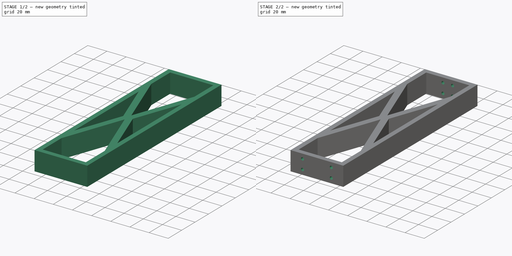
[diagram: build sequence overview — one tinted view per stage of 2, left to right]
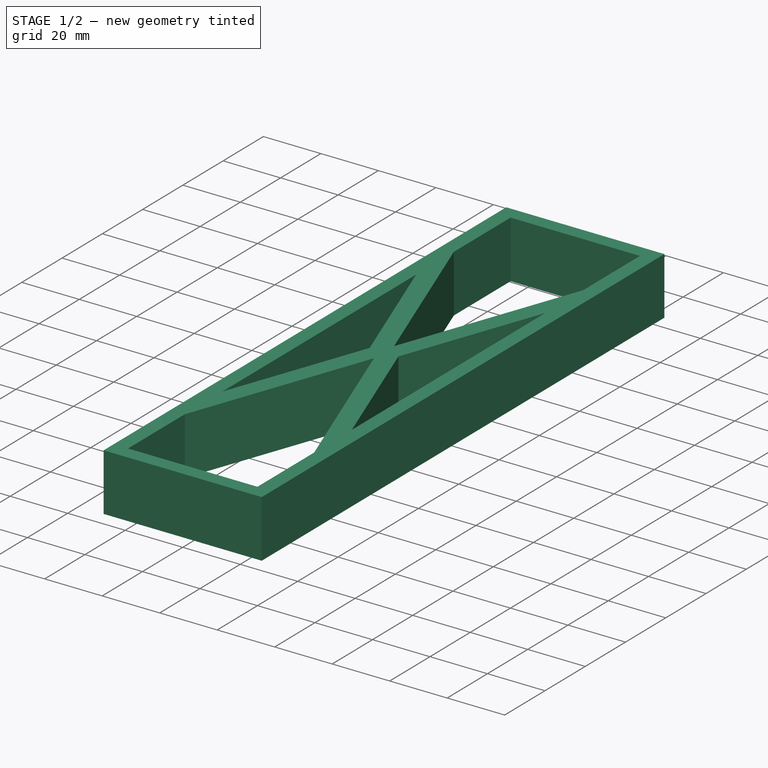
[diagram: stage 1 of 2 — iso view after this stage's code; geometry added in this stage tinted green]
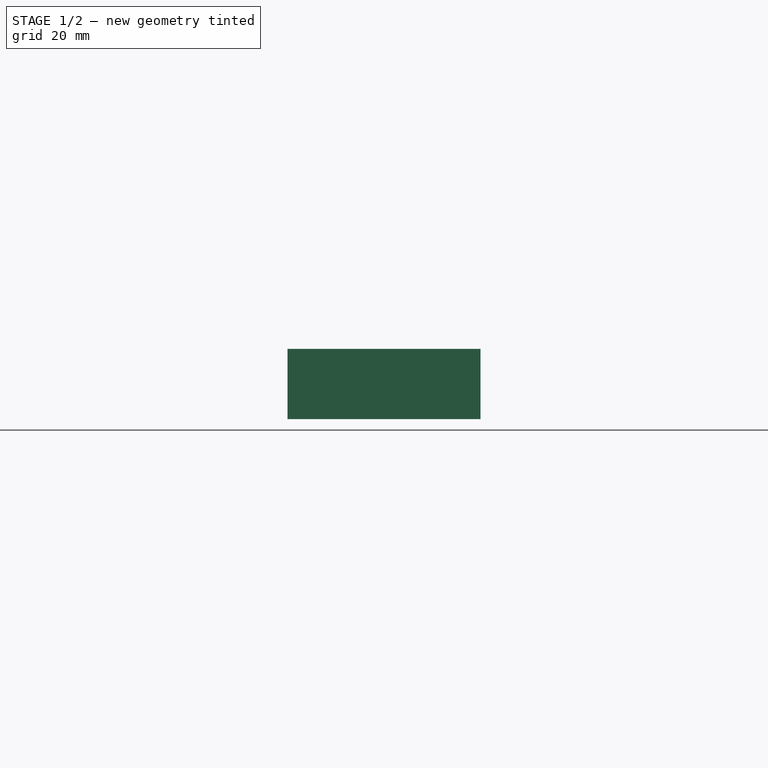
[diagram: stage 1 of 2 — front view after this stage's code; geometry added in this stage tinted green]
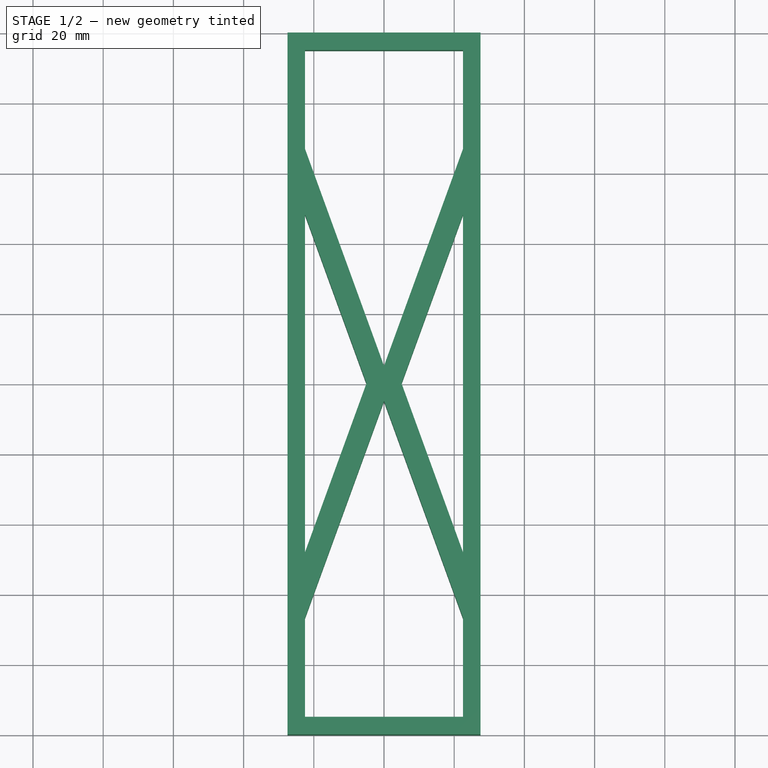
[diagram: stage 1 of 2 — top view after this stage's code; geometry added in this stage tinted green]
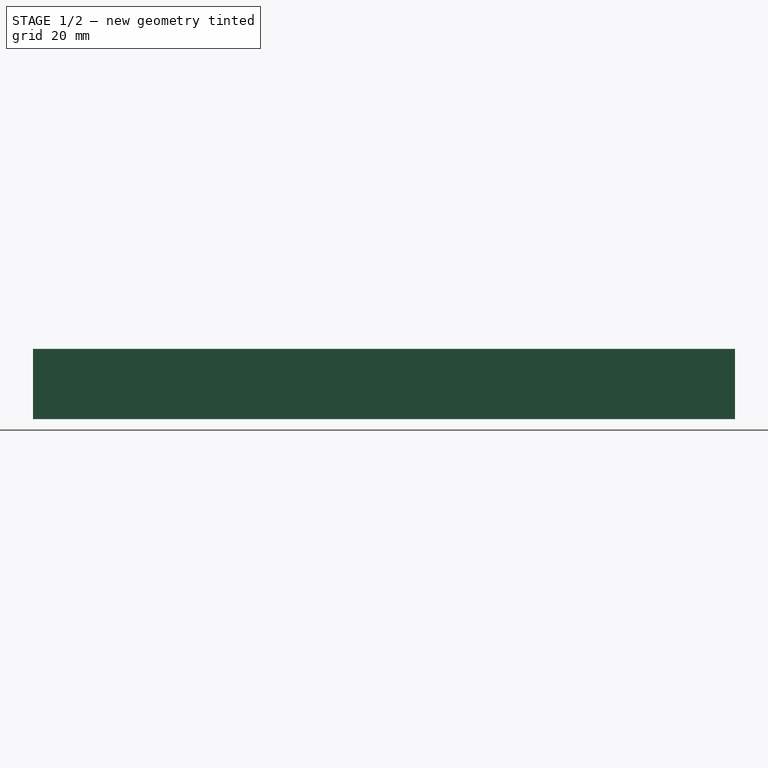
[diagram: stage 1 of 2 — right view after this stage's code; geometry added in this stage tinted green]
FCSTD DOCUMENT  (FreeCAD 0.21R33771 (Git))
Label: Arm0
License: All rights reserved
LicenseURL: https://en.wikipedia.org/wiki/All_rights_reserved
objects: Sketcher::SketchObject×4, PartDesign::Pocket×3, PartDesign::Pad×1, PartDesign::Body×1
note: 13 computed .brp shape members not serialized (recipe doc carries the construction recipe); baked Part::Feature solids carry a one-line shape summary decoded from their .brp

FEATURE [Sketcher::SketchObject] Sketch
  FullyConstrained = true
  MapMode = 5
  Support = -> [XY_Plane]
  sketch-geometry (4):
    g0: LineSegment StartX=-27.5 StartY=-100 StartZ=0 EndX=-27.5 EndY=100 EndZ=0
    g1: LineSegment StartX=-27.5 StartY=100 StartZ=0 EndX=27.5 EndY=100 EndZ=0
    g2: LineSegment StartX=27.5 StartY=100 StartZ=0 EndX=27.5 EndY=-100 EndZ=0
    g3: LineSegment StartX=27.5 StartY=-100 StartZ=0 EndX=-27.5 EndY=-100 EndZ=0
  constraints (12):
    c: Vertical(g0)
    c: Coincident(g0,g1)
    c: Horizontal(g1)
    c: Coincident(g1,g2)
    c: Vertical(g2)
    c: Coincident(g2,g3)
    c: Coincident(g3,g0)
    c: Horizontal(g3)
    c: DistanceX(g0,g1) = 55
    c: DistanceY(g0,g0) = 200
    c: DistanceY(g-1,g0) = 100
    c: DistanceX(g0,g-1) = 27.5
FEATURE [PartDesign::Pad] Pad
  Direction = (0,0,1)
  Length = 20
  Length2 = 10
  Profile = -> Sketch
  ReferenceAxis = -> Sketch [N_Axis]
  Type = 0
FEATURE [Sketcher::SketchObject] Sketch001
  ExternalGeometry = -> [Pad]
  FullyConstrained = true
  MapMode = 5
  Placement = pos=(0,0,20) rot=(0,0,1;0rad)
  Support = -> [Pad]
  sketch-geometry (16):
    g0: LineSegment StartX=-22.5 StartY=-95 StartZ=0 EndX=22.5 EndY=-95 EndZ=0
    g1: LineSegment StartX=22.5 StartY=-95 StartZ=0 EndX=22.5 EndY=-66.8182 EndZ=0
    g2: LineSegment StartX=22.5 StartY=-66.8182 StartZ=0 EndX=0 EndY=-5 EndZ=0
    g3: LineSegment StartX=0 StartY=-5 StartZ=0 EndX=-22.5 EndY=-66.8182 EndZ=0
    g4: LineSegment StartX=-22.5 StartY=-66.8182 StartZ=0 EndX=-22.5 EndY=-95 EndZ=0
    g5: LineSegment StartX=-22.5 StartY=95 StartZ=0 EndX=22.5 EndY=95 EndZ=0
    g6: LineSegment StartX=22.5 StartY=95 StartZ=0 EndX=22.5 EndY=66.8182 EndZ=0
    g7: LineSegment StartX=22.5 StartY=66.8182 StartZ=0 EndX=0 EndY=5 EndZ=0
    g8: LineSegment StartX=0 StartY=5 StartZ=0 EndX=-22.5 EndY=66.8182 EndZ=0
    g9: LineSegment StartX=-22.5 StartY=66.8182 StartZ=0 EndX=-22.5 EndY=95 EndZ=0
    g10: LineSegment StartX=-5 StartY=0 StartZ=0 EndX=-22.5 EndY=-48.0809 EndZ=0
    g11: LineSegment StartX=-22.5 StartY=-48.0809 StartZ=0 EndX=-22.5 EndY=48.0809 EndZ=0
    g12: LineSegment StartX=-22.5 StartY=48.0809 StartZ=0 EndX=-5 EndY=0 EndZ=0
    g13: LineSegment StartX=5 StartY=0 StartZ=0 EndX=22.5 EndY=48.0809 EndZ=0
    g14: LineSegment StartX=22.5 StartY=48.0809 StartZ=0 EndX=22.5 EndY=-48.0809 EndZ=0
    g15: LineSegment StartX=22.5 StartY=-48.0809 StartZ=0 EndX=5 EndY=0 EndZ=0
  constraints (48):
    c: Horizontal(g0)
    c: Coincident(g0,g1)
    c: Vertical(g1)
    c: Coincident(g1,g2)
    c: PointOnObject(g2,g-2)
    c: Coincident(g2,g3)
    c: Coincident(g3,g4)
    c: Coincident(g4,g0)
    c: Vertical(g4)
    c: Horizontal(g5)
    c: Coincident(g5,g6)
    c: Vertical(g6)
    c: Coincident(g6,g7)
    c: PointOnObject(g7,g-2)
    c: Coincident(g7,g8)
    c: Coincident(g8,g9)
    c: Coincident(g9,g5)
    c: PointOnObject(g10,g-1)
    c: Coincident(g10,g11)
    c: Vertical(g11)
    c: Coincident(g11,g12)
    c: Coincident(g12,g10)
    c: PointOnObject(g13,g-1)
    c: Coincident(g13,g14)
    c: Vertical(g14)
    c: Coincident(g14,g15)
    c: Coincident(g15,g13)
    c: DistanceY(g-6,g0) = 5
    c: DistanceY(g5,g-4) = 5
    c: DistanceX(g-5,g5) = 5
    c: DistanceX(g5,g-4) = 5
    c: Vertical(g9)
    c: Angle(g8,g9) = 2.79253
    c: Angle(g6,g7) = 2.79253
    c: Angle(g4,g3) = 2.79253
    c: Angle(g2,g1) = 2.79253
    c: Angle(g11,g12) = 0.349066
    c: Angle(g10,g11) = 0.349066
    c: Angle(g14,g15) = 0.349066
    c: Angle(g13,g14) = 0.349066
    c: DistanceY(g1,g3) = 0
    c: DistanceX(g10,g-1) = 5
    c: DistanceX(g-1,g13) = 5
    c: DistanceY(g2,g-1) = 5
    c: DistanceY(g-1,g7) = 5
    c: DistanceX(g-5,g11) = 5
    c: DistanceX(g13,g-4) = 5
    c: DistanceX(g-6,g0) = 5
FEATURE [PartDesign::Pocket] Pocket
  BaseFeature = -> Pad
  Direction = (0,0,-1)
  Length = 20
  Length2 = 5
  Profile = -> Sketch001
  ReferenceAxis = -> Sketch001 [N_Axis]
  Type = 0
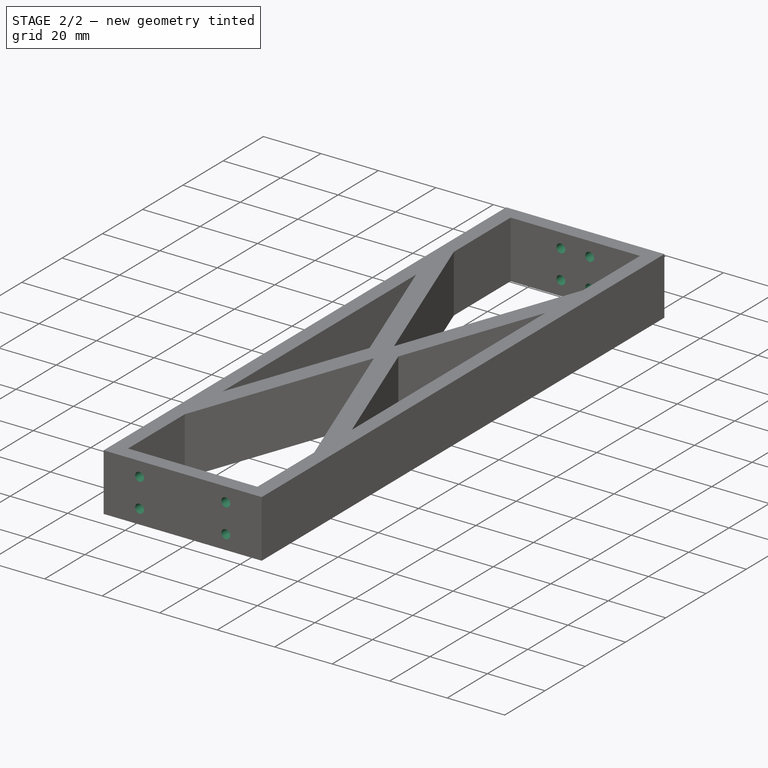
[diagram: stage 2 of 2 — iso view after this stage's code; geometry added in this stage tinted green]
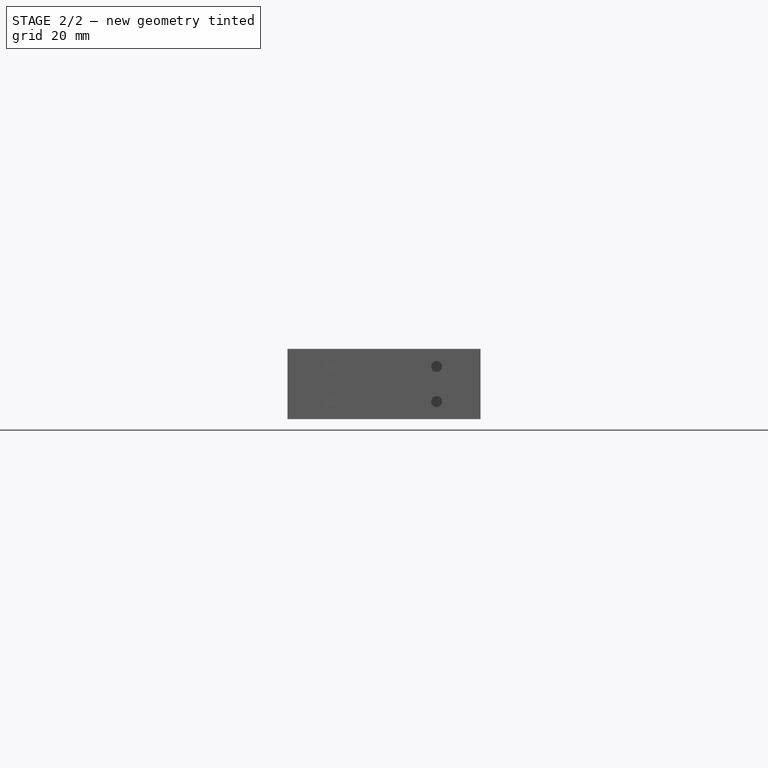
[diagram: stage 2 of 2 — front view after this stage's code; geometry added in this stage tinted green]
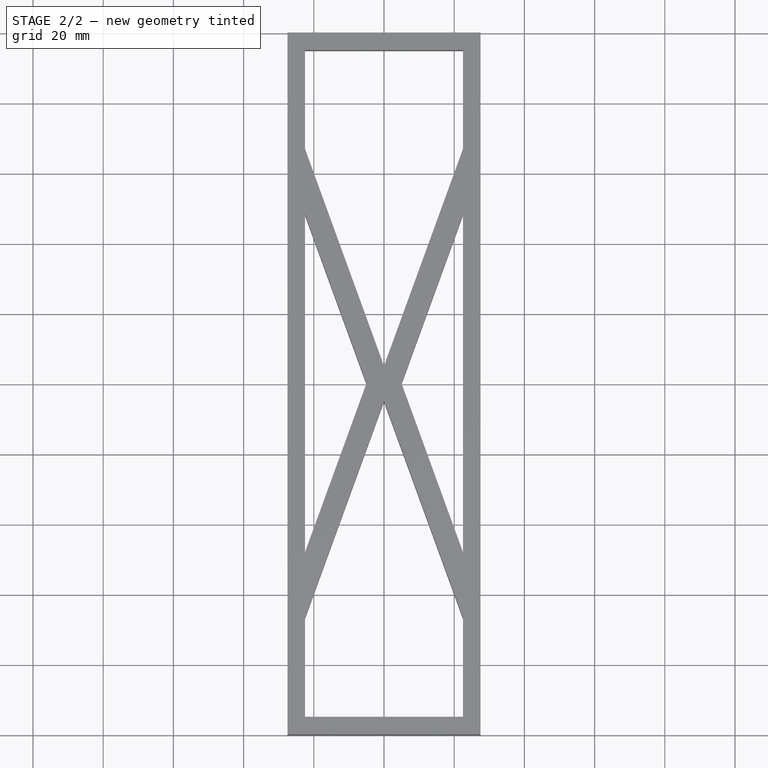
[diagram: stage 2 of 2 — top view after this stage's code; geometry added in this stage tinted green]
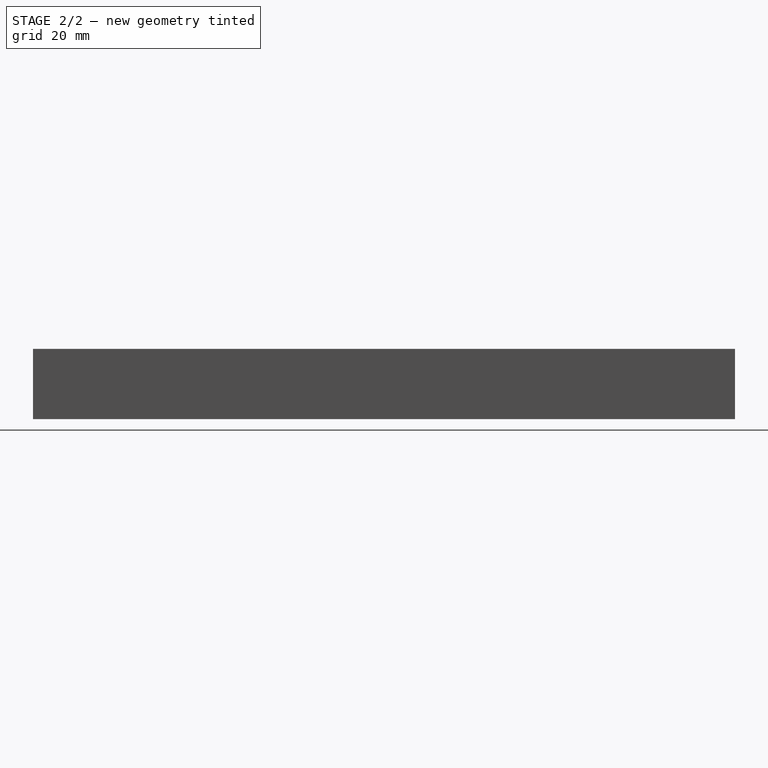
[diagram: stage 2 of 2 — right view after this stage's code; geometry added in this stage tinted green]
FEATURE [Sketcher::SketchObject] Sketch002
  FullyConstrained = true
  MapMode = 5
  Placement = pos=(0,100,0) rot=(0,0.707107,0.707107;3.14159rad)
  Support = -> [Pocket]
  sketch-geometry (4):
    g0: Circle CenterX=-5 CenterY=15 CenterZ=0 NormalX=0 NormalY=0 NormalZ=1 AngleXU=0 Radius=1.55
    g1: Circle CenterX=5 CenterY=15 CenterZ=0 NormalX=0 NormalY=0 NormalZ=1 AngleXU=0 Radius=1.55
    g2: Circle CenterX=5 CenterY=5 CenterZ=0 NormalX=0 NormalY=0 NormalZ=1 AngleXU=0 Radius=1.55
    g3: Circle CenterX=-5 CenterY=5 CenterZ=0 NormalX=0 NormalY=0 NormalZ=1 AngleXU=0 Radius=1.55
  constraints (12):
    c: Diameter(g0) = 3.1
    c: Diameter(g3) = 3.1
    c: Diameter(g2) = 3.1
    c: Diameter(g1) = 3.1
    c: DistanceX(g0,g1) = 10
    c: DistanceX(g0,g-1) = 5
    c: DistanceX(g3,g2) = 10
    c: DistanceX(g3,g-1) = 5
    c: DistanceY(g3,g0) = 10
    c: DistanceY(g2,g1) = 10
    c: DistanceY(g-1,g3) = 5
    c: DistanceY(g-1,g2) = 5
FEATURE [PartDesign::Pocket] Pocket001
  BaseFeature = -> Pocket
  Direction = (0,-1,2e-16)
  Length = 5
  Length2 = 5
  Profile = -> Sketch002
  ReferenceAxis = -> Sketch002 [N_Axis]
  Type = 0
FEATURE [Sketcher::SketchObject] Sketch003
  FullyConstrained = true
  MapMode = 5
  Placement = pos=(0,-100,0) rot=(1,0,0;1.5708rad)
  Support = -> [Pocket001]
  sketch-geometry (4):
    g0: Circle CenterX=-15 CenterY=15 CenterZ=0 NormalX=0 NormalY=0 NormalZ=1 AngleXU=0 Radius=1.55
    g1: Circle CenterX=15 CenterY=15 CenterZ=0 NormalX=0 NormalY=0 NormalZ=1 AngleXU=0 Radius=1.55
    g2: Circle CenterX=15 CenterY=5 CenterZ=0 NormalX=0 NormalY=0 NormalZ=1 AngleXU=0 Radius=1.55
    g3: Circle CenterX=-15 CenterY=5 CenterZ=0 NormalX=0 NormalY=0 NormalZ=1 AngleXU=0 Radius=1.55
  constraints (12):
    c: DistanceY(g3,g0) = 10
    c: DistanceY(g2,g1) = 10
    c: DistanceY(g-1,g2) = 5
    c: DistanceY(g-1,g3) = 5
    c: Diameter(g0) = 3.1
    c: Diameter(g1) = 3.1
    c: Diameter(g3) = 3.1
    c: Diameter(g2) = 3.1
    c: DistanceX(g0,g1) = 30
    c: DistanceX(g3,g2) = 30
    c: DistanceX(g3,g-1) = 15
    c: DistanceX(g0,g-1) = 15
FEATURE [PartDesign::Pocket] Pocket002
  BaseFeature = -> Pocket001
  Direction = (0,1,-2e-16)
  Length = 5
  Length2 = 5
  Profile = -> Sketch003
  ReferenceAxis = -> Sketch003 [N_Axis]
  Type = 0
FEATURE [PartDesign::Body] Body
  Group = -> [Sketch,Pad,Sketch001,Pocket,Sketch002,Pocket001,Sketch003,Pocket002]
  Origin = -> Origin
  Tip = -> Pocket002
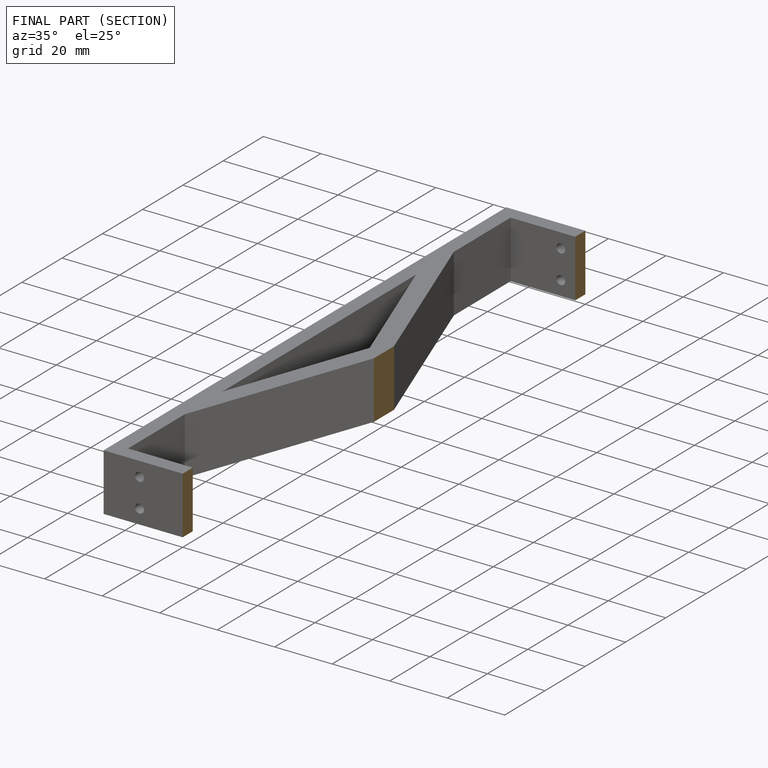
[diagram: finished part — half-section view (interior)]
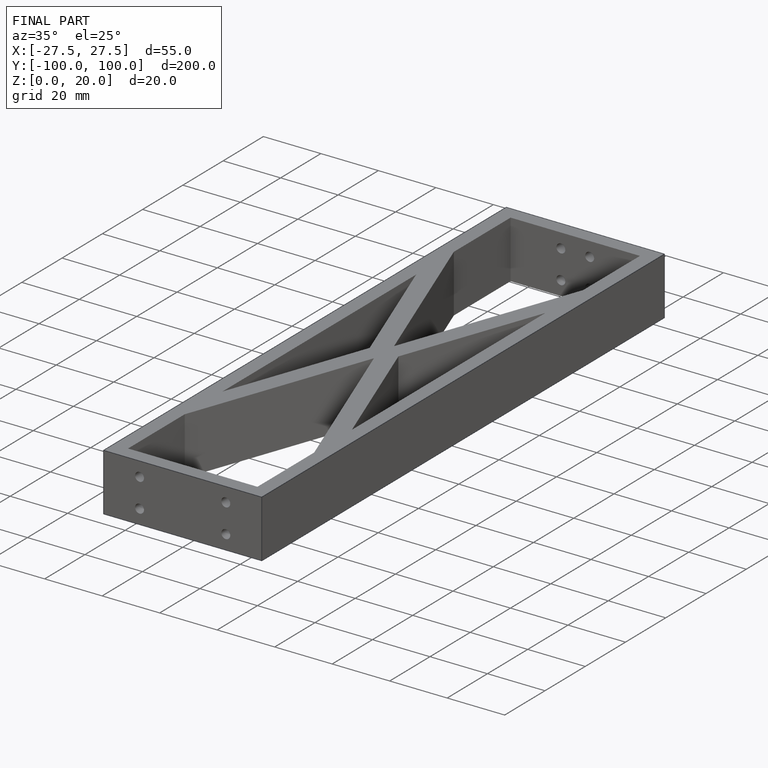
[diagram: finished part — iso view with bounding-box wireframe]
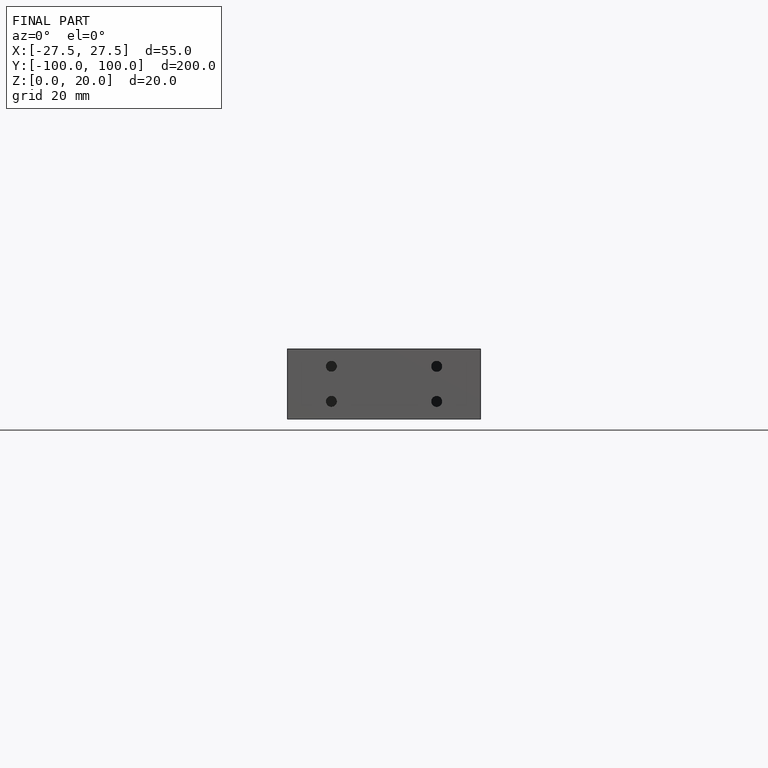
[diagram: finished part — front view with bounding-box wireframe]
